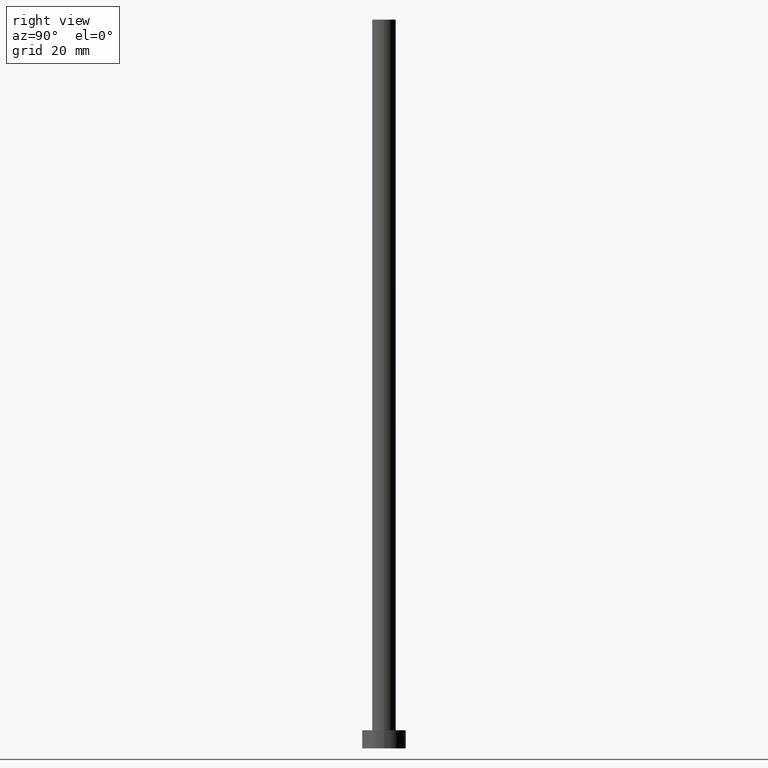
[diagram: clean part render]
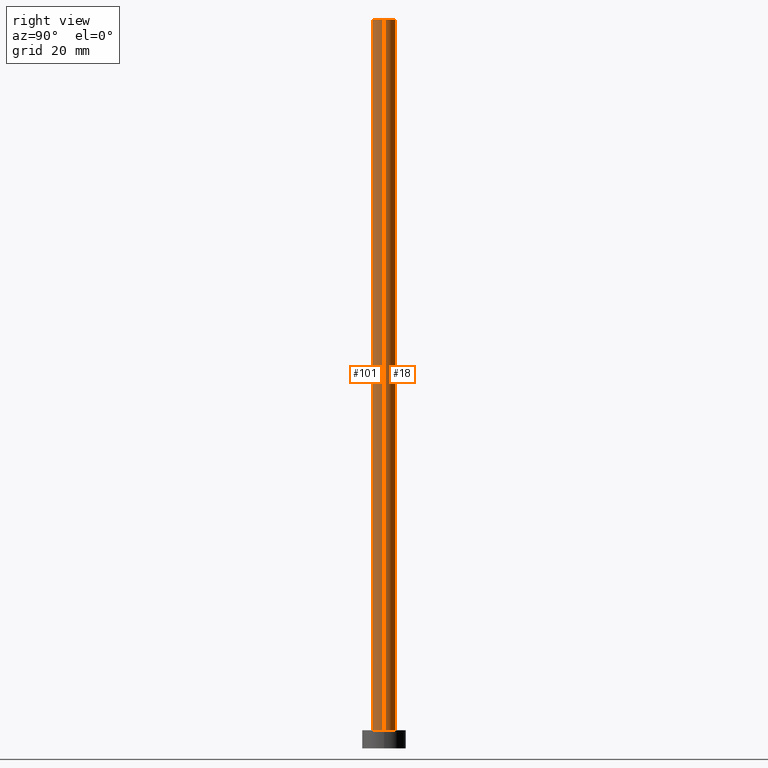
[diagram: same view with one multi-face feature highlighted, each face labeled with its STEP entity id]
A machine part, right view. The highlighted faces form ONE feature: a constant-radius fillet chain: 2 tangent blend faces with common blend radius 3.25 mm. The faces share edges in the B-rep.
Their STEP definitions:
[1] entity #18 (Cylinder):
#6 = AXIS2_PLACEMENT_3D ( 'NONE', #151, #55, #34 ) ;
#10 = FACE_OUTER_BOUND ( 'NONE', #44, .T. ) ;
#11 = ORIENTED_EDGE ( 'NONE', *, *, #186, .T. ) ;
#13 = AXIS2_PLACEMENT_3D ( 'NONE', #50, #63, #128 ) ;
#16 = CARTESIAN_POINT ( 'NONE',  ( 3.250000000000000444, 3.980102097228898231E-16, 200.0000000000000000 ) ) ;
#18 = ADVANCED_FACE ( 'NONE', ( #10 ), #244, .T. ) ;
#28 = VERTEX_POINT ( 'NONE', #226 ) ;
#30 = ORIENTED_EDGE ( 'NONE', *, *, #142, .T. ) ;
#32 = VERTEX_POINT ( 'NONE', #122 ) ;
#34 = DIRECTION ( 'NONE',  ( 1.000000000000000000, 0.000000000000000000, 0.000000000000000000 ) ) ;
#43 = CARTESIAN_POINT ( 'NONE',  ( -3.250000000000000444, 0.000000000000000000, 200.0000000000000000 ) ) ;
#44 = EDGE_LOOP ( 'NONE', ( #106, #30, #11, #116 ) ) ;
#45 = EDGE_CURVE ( 'NONE', #225, #32, #245, .T. ) ;
#50 = CARTESIAN_POINT ( 'NONE',  ( 0.000000000000000000, 0.000000000000000000, 200.0000000000000000 ) ) ;
#53 = CIRCLE ( 'NONE', #6, 3.250000000000000444 ) ;
#55 = DIRECTION ( 'NONE',  ( 0.000000000000000000, 0.000000000000000000, 1.000000000000000000 ) ) ;
#63 = DIRECTION ( 'NONE',  ( -0.000000000000000000, -0.000000000000000000, -1.000000000000000000 ) ) ;
#70 = CIRCLE ( 'NONE', #246, 3.250000000000000444 ) ;
#72 = CARTESIAN_POINT ( 'NONE',  ( -3.250000000000000444, 0.000000000000000000, 200.0000000000000000 ) ) ;
#94 = LINE ( 'NONE', #16, #135 ) ;
#96 = VERTEX_POINT ( 'NONE', #124 ) ;
#102 = DIRECTION ( 'NONE',  ( -0.000000000000000000, -0.000000000000000000, -1.000000000000000000 ) ) ;
#106 = ORIENTED_EDGE ( 'NONE', *, *, #110, .F. ) ;
#110 = EDGE_CURVE ( 'NONE', #96, #225, #70, .T. ) ;
#116 = ORIENTED_EDGE ( 'NONE', *, *, #45, .F. ) ;
#122 = CARTESIAN_POINT ( 'NONE',  ( -3.250000000000000444, 0.000000000000000000, 5.000000000000000000 ) ) ;
#124 = CARTESIAN_POINT ( 'NONE',  ( 3.250000000000000444, 3.980102097228898231E-16, 200.0000000000000000 ) ) ;
#128 = DIRECTION ( 'NONE',  ( -1.000000000000000000, 0.000000000000000000, 0.000000000000000000 ) ) ;
#135 = VECTOR ( 'NONE', #149, 1000.000000000000000 ) ;
#142 = EDGE_CURVE ( 'NONE', #96, #28, #94, .T. ) ;
#149 = DIRECTION ( 'NONE',  ( -0.000000000000000000, -0.000000000000000000, -1.000000000000000000 ) ) ;
#151 = CARTESIAN_POINT ( 'NONE',  ( 0.000000000000000000, 0.000000000000000000, 5.000000000000000000 ) ) ;
#186 = EDGE_CURVE ( 'NONE', #28, #32, #53, .T. ) ;
#210 = CARTESIAN_POINT ( 'NONE',  ( 0.000000000000000000, 0.000000000000000000, 200.0000000000000000 ) ) ;
#225 = VERTEX_POINT ( 'NONE', #72 ) ;
#226 = CARTESIAN_POINT ( 'NONE',  ( 3.250000000000000444, 3.980102097228898231E-16, 5.000000000000000000 ) ) ;
#228 = VECTOR ( 'NONE', #102, 1000.000000000000000 ) ;
#230 = DIRECTION ( 'NONE',  ( 0.000000000000000000, 0.000000000000000000, 1.000000000000000000 ) ) ;
#235 = DIRECTION ( 'NONE',  ( 1.000000000000000000, 0.000000000000000000, 0.000000000000000000 ) ) ;
#244 = CYLINDRICAL_SURFACE ( 'NONE', #13, 3.250000000000000444 ) ;
#245 = LINE ( 'NONE', #43, #228 ) ;
#246 = AXIS2_PLACEMENT_3D ( 'NONE', #210, #230, #235 ) ;
[2] entity #101 (Cylinder):
#1 = EDGE_CURVE ( 'NONE', #225, #96, #252, .T. ) ;
#8 = CARTESIAN_POINT ( 'NONE',  ( 0.000000000000000000, 0.000000000000000000, 5.000000000000000000 ) ) ;
#9 = FACE_OUTER_BOUND ( 'NONE', #204, .T. ) ;
#16 = CARTESIAN_POINT ( 'NONE',  ( 3.250000000000000444, 3.980102097228898231E-16, 200.0000000000000000 ) ) ;
#28 = VERTEX_POINT ( 'NONE', #226 ) ;
#32 = VERTEX_POINT ( 'NONE', #122 ) ;
#43 = CARTESIAN_POINT ( 'NONE',  ( -3.250000000000000444, 0.000000000000000000, 200.0000000000000000 ) ) ;
#45 = EDGE_CURVE ( 'NONE', #225, #32, #245, .T. ) ;
#58 = ORIENTED_EDGE ( 'NONE', *, *, #142, .F. ) ;
#65 = AXIS2_PLACEMENT_3D ( 'NONE', #167, #231, #129 ) ;
#66 = EDGE_CURVE ( 'NONE', #32, #28, #115, .T. ) ;
#69 = DIRECTION ( 'NONE',  ( 1.000000000000000000, 0.000000000000000000, 0.000000000000000000 ) ) ;
#72 = CARTESIAN_POINT ( 'NONE',  ( -3.250000000000000444, 0.000000000000000000, 200.0000000000000000 ) ) ;
#83 = DIRECTION ( 'NONE',  ( 1.000000000000000000, 0.000000000000000000, 0.000000000000000000 ) ) ;
#85 = CYLINDRICAL_SURFACE ( 'NONE', #65, 3.250000000000000444 ) ;
#94 = LINE ( 'NONE', #16, #135 ) ;
#96 = VERTEX_POINT ( 'NONE', #124 ) ;
#100 = ORIENTED_EDGE ( 'NONE', *, *, #45, .T. ) ;
#101 = ADVANCED_FACE ( 'NONE', ( #9 ), #85, .T. ) ;
#102 = DIRECTION ( 'NONE',  ( -0.000000000000000000, -0.000000000000000000, -1.000000000000000000 ) ) ;
#103 = ORIENTED_EDGE ( 'NONE', *, *, #66, .T. ) ;
#115 = CIRCLE ( 'NONE', #182, 3.250000000000000444 ) ;
#122 = CARTESIAN_POINT ( 'NONE',  ( -3.250000000000000444, 0.000000000000000000, 5.000000000000000000 ) ) ;
#124 = CARTESIAN_POINT ( 'NONE',  ( 3.250000000000000444, 3.980102097228898231E-16, 200.0000000000000000 ) ) ;
#129 = DIRECTION ( 'NONE',  ( -1.000000000000000000, 0.000000000000000000, 0.000000000000000000 ) ) ;
#135 = VECTOR ( 'NONE', #149, 1000.000000000000000 ) ;
#142 = EDGE_CURVE ( 'NONE', #96, #28, #94, .T. ) ;
#149 = DIRECTION ( 'NONE',  ( -0.000000000000000000, -0.000000000000000000, -1.000000000000000000 ) ) ;
#164 = DIRECTION ( 'NONE',  ( 0.000000000000000000, 0.000000000000000000, 1.000000000000000000 ) ) ;
#167 = CARTESIAN_POINT ( 'NONE',  ( 0.000000000000000000, 0.000000000000000000, 200.0000000000000000 ) ) ;
#169 = ORIENTED_EDGE ( 'NONE', *, *, #1, .F. ) ;
#181 = CARTESIAN_POINT ( 'NONE',  ( 0.000000000000000000, 0.000000000000000000, 200.0000000000000000 ) ) ;
#182 = AXIS2_PLACEMENT_3D ( 'NONE', #8, #249, #83 ) ;
#201 = AXIS2_PLACEMENT_3D ( 'NONE', #181, #164, #69 ) ;
#204 = EDGE_LOOP ( 'NONE', ( #58, #169, #100, #103 ) ) ;
#225 = VERTEX_POINT ( 'NONE', #72 ) ;
#226 = CARTESIAN_POINT ( 'NONE',  ( 3.250000000000000444, 3.980102097228898231E-16, 5.000000000000000000 ) ) ;
#228 = VECTOR ( 'NONE', #102, 1000.000000000000000 ) ;
#231 = DIRECTION ( 'NONE',  ( -0.000000000000000000, -0.000000000000000000, -1.000000000000000000 ) ) ;
#245 = LINE ( 'NONE', #43, #228 ) ;
#249 = DIRECTION ( 'NONE',  ( 0.000000000000000000, 0.000000000000000000, 1.000000000000000000 ) ) ;
#252 = CIRCLE ( 'NONE', #201, 3.250000000000000444 ) ;